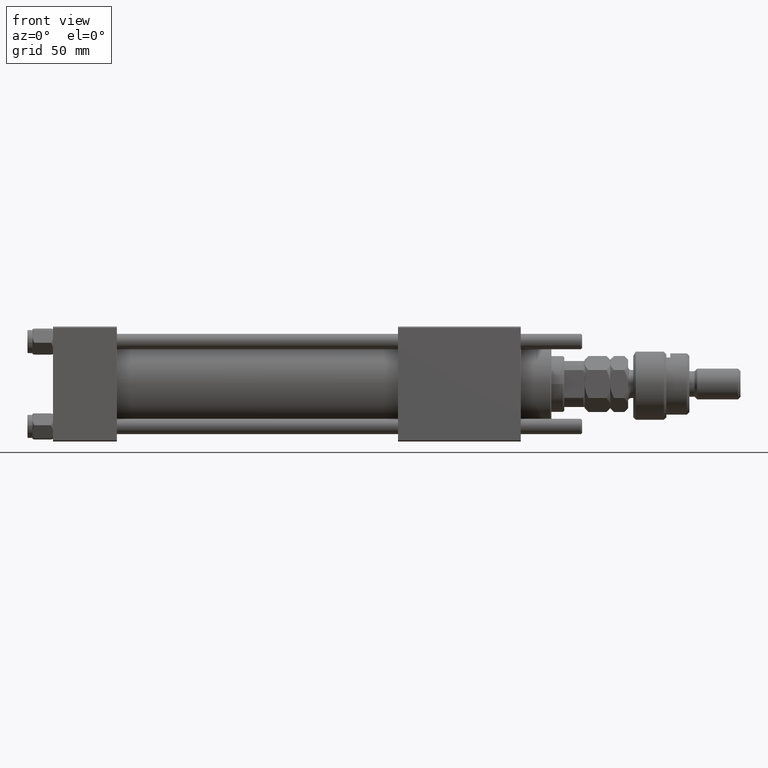
[diagram: clean part render]
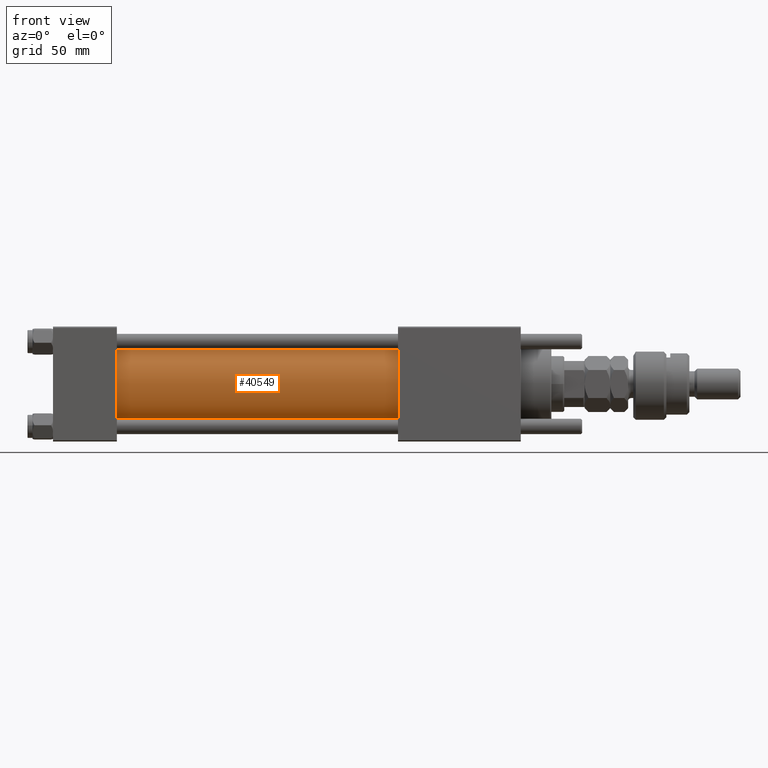
[diagram: same view with one face highlighted and labeled with its STEP entity id]
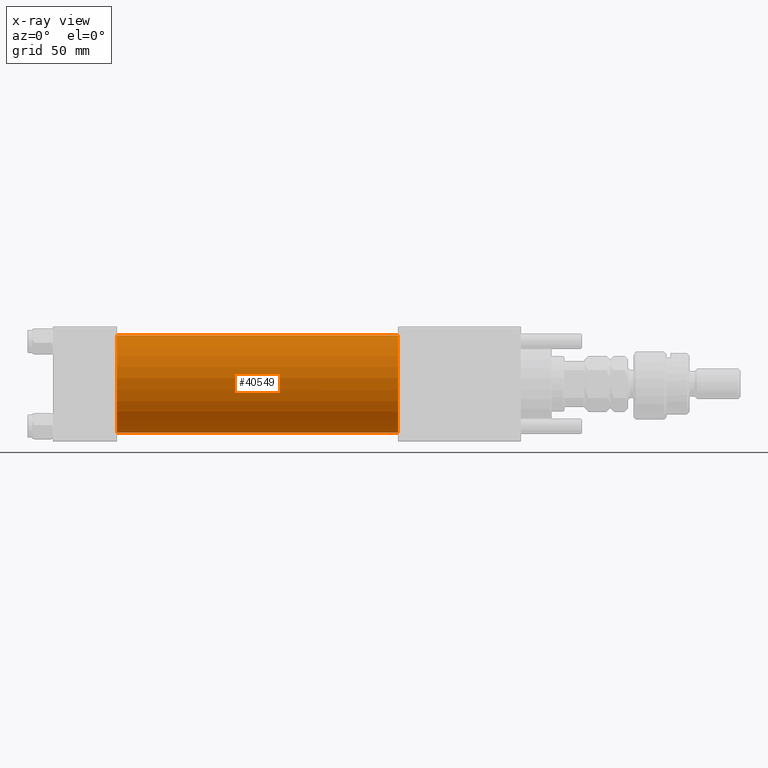
[diagram: x-ray of the same camera — body ghosted, the highlighted face saturated]
A machine part, front view. The second image highlights one B-rep face of the part: STEP entity #40549.
The next image is the same camera in x-ray: the body ghosted, the highlighted face saturated — about 0% of this face is hidden behind the body in this view.
In plain terms, the highlighted cylindrical surface (partial cylindrical patch) has radius 19 mm, axis along (-1, -0, -0).
Its self-contained STEP definition (entity closure, byte-faithful):
#2819 = DIRECTION ( 'NONE',  ( 1.000000000000000000, 0.000000000000000000, 0.000000000000000000 ) ) ;
#4666 = FACE_OUTER_BOUND ( 'NONE', #28614, .T. ) ;
#5736 = VERTEX_POINT ( 'NONE', #22057 ) ;
#7658 = AXIS2_PLACEMENT_3D ( 'NONE', #34483, #2819, #16663 ) ;
#8200 = EDGE_CURVE ( 'NONE', #49333, #39043, #18258, .T. ) ;
#12639 = CARTESIAN_POINT ( 'NONE',  ( 24.99999999999999289, -2.752562955852396712E-16, -19.00000000000000000 ) ) ;
#12798 = ORIENTED_EDGE ( 'NONE', *, *, #8200, .F. ) ;
#13594 = ORIENTED_EDGE ( 'NONE', *, *, #16013, .F. ) ;
#14597 = DIRECTION ( 'NONE',  ( -1.000000000000000000, -0.000000000000000000, -0.000000000000000000 ) ) ;
#14894 = LINE ( 'NONE', #24553, #45730 ) ;
#16013 = EDGE_CURVE ( 'NONE', #20014, #49333, #18239, .T. ) ;
#16663 = DIRECTION ( 'NONE',  ( 0.000000000000000000, 0.000000000000000000, -1.000000000000000000 ) ) ;
#18189 = CARTESIAN_POINT ( 'NONE',  ( 135.0000000000000000, -2.602085213965210642E-15, 19.00000000000000000 ) ) ;
#18239 = CIRCLE ( 'NONE', #7658, 19.00000000000000000 ) ;
#18258 = LINE ( 'NONE', #59567, #45928 ) ;
#18774 = DIRECTION ( 'NONE',  ( 0.000000000000000000, 0.000000000000000000, 1.000000000000000000 ) ) ;
#19284 = CIRCLE ( 'NONE', #52966, 19.00000000000000000 ) ;
#19511 = EDGE_CURVE ( 'NONE', #5736, #39043, #19284, .T. ) ;
#20014 = VERTEX_POINT ( 'NONE', #18189 ) ;
#22057 = CARTESIAN_POINT ( 'NONE',  ( 24.99999999999999289, -2.602085213965210642E-15, 19.00000000000000000 ) ) ;
#23062 = CYLINDRICAL_SURFACE ( 'NONE', #36819, 19.00000000000000000 ) ;
#24553 = CARTESIAN_POINT ( 'NONE',  ( 135.0000000000000000, -2.602085213965210642E-15, 19.00000000000000000 ) ) ;
#28614 = EDGE_LOOP ( 'NONE', ( #12798, #13594, #34730, #32166 ) ) ;
#32133 = DIRECTION ( 'NONE',  ( -1.000000000000000000, -0.000000000000000000, -0.000000000000000000 ) ) ;
#32166 = ORIENTED_EDGE ( 'NONE', *, *, #19511, .T. ) ;
#32363 = CARTESIAN_POINT ( 'NONE',  ( 135.0000000000000000, -2.752562955852396712E-16, -19.00000000000000000 ) ) ;
#32978 = DIRECTION ( 'NONE',  ( 0.000000000000000000, 0.000000000000000000, 1.000000000000000000 ) ) ;
#34483 = CARTESIAN_POINT ( 'NONE',  ( 135.0000000000000000, -2.602085213965210642E-15, 0.000000000000000000 ) ) ;
#34730 = ORIENTED_EDGE ( 'NONE', *, *, #53595, .T. ) ;
#36819 = AXIS2_PLACEMENT_3D ( 'NONE', #55896, #55595, #32978 ) ;
#39043 = VERTEX_POINT ( 'NONE', #12639 ) ;
#40549 = ADVANCED_FACE ( 'NONE', ( #4666 ), #23062, .T. ) ;
#41389 = CARTESIAN_POINT ( 'NONE',  ( 24.99999999999999289, -2.602085213965210642E-15, 0.000000000000000000 ) ) ;
#45616 = DIRECTION ( 'NONE',  ( 1.000000000000000000, -0.000000000000000000, 0.000000000000000000 ) ) ;
#45730 = VECTOR ( 'NONE', #14597, 1000.000000000000000 ) ;
#45928 = VECTOR ( 'NONE', #32133, 1000.000000000000000 ) ;
#49333 = VERTEX_POINT ( 'NONE', #32363 ) ;
#52966 = AXIS2_PLACEMENT_3D ( 'NONE', #41389, #45616, #18774 ) ;
#53595 = EDGE_CURVE ( 'NONE', #20014, #5736, #14894, .T. ) ;
#55595 = DIRECTION ( 'NONE',  ( -1.000000000000000000, -0.000000000000000000, -0.000000000000000000 ) ) ;
#55896 = CARTESIAN_POINT ( 'NONE',  ( 135.0000000000000000, -2.602085213965210642E-15, 0.000000000000000000 ) ) ;
#59567 = CARTESIAN_POINT ( 'NONE',  ( 135.0000000000000000, -2.752562955852396712E-16, -19.00000000000000000 ) ) ;